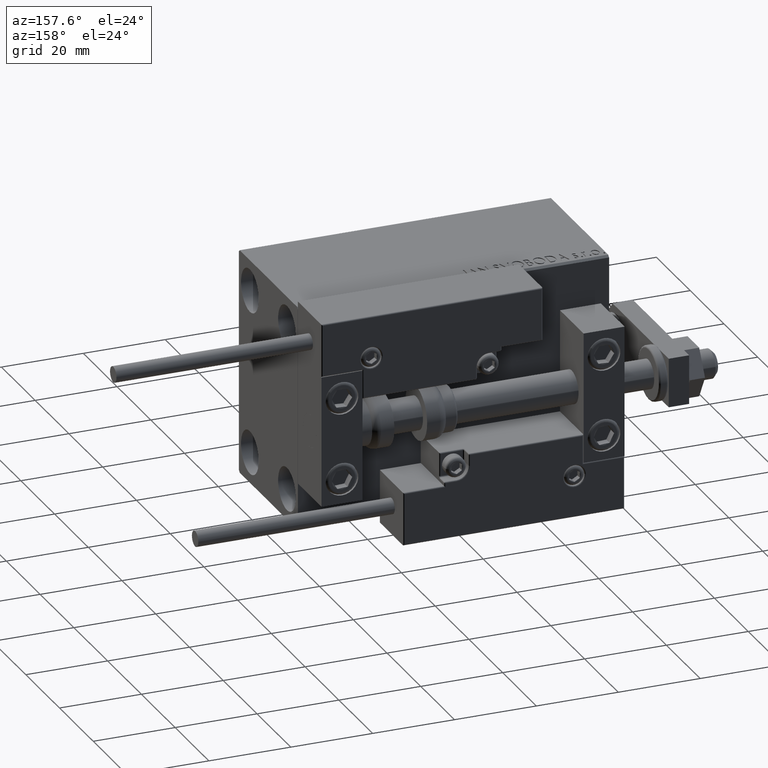
[diagram: clean part render]
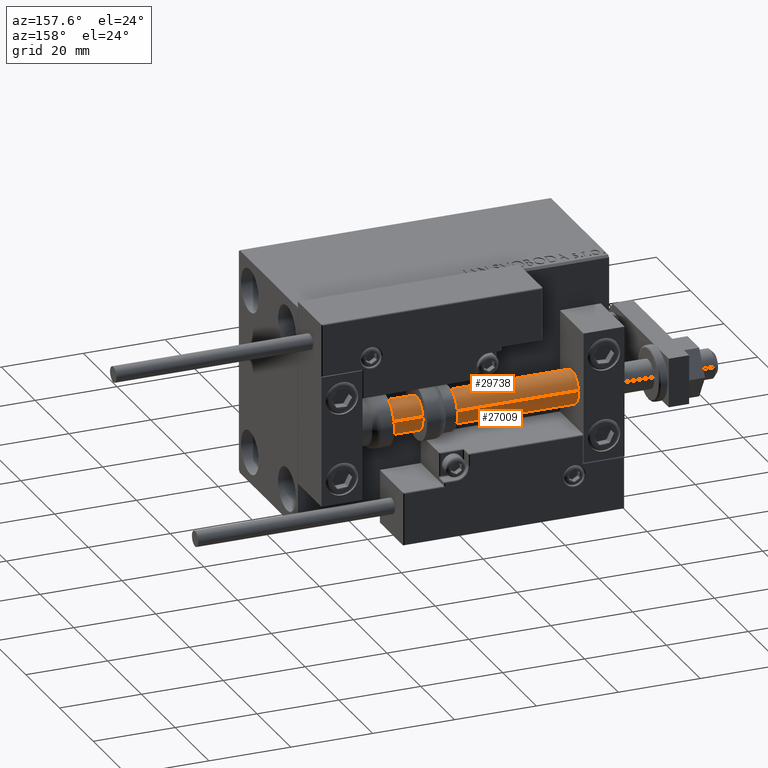
[diagram: same view with one multi-face feature highlighted, each face labeled with its STEP entity id]
A machine part, auxiliary view. The highlighted faces form ONE feature: a constant-radius fillet chain: 2 tangent blend faces with common blend radius 4 mm. The faces share edges in the B-rep.
Their STEP definitions:
[1] entity #27009 (Cylinder):
#1312 = LINE ( 'NONE', #24882, #38145 ) ;
#1612 = VECTOR ( 'NONE', #38724, 1000.000000000000000 ) ;
#2572 = VERTEX_POINT ( 'NONE', #23487 ) ;
#5825 = ORIENTED_EDGE ( 'NONE', *, *, #38409, .T. ) ;
#7432 = VERTEX_POINT ( 'NONE', #17782 ) ;
#7963 = EDGE_CURVE ( 'NONE', #7432, #30682, #26804, .T. ) ;
#8690 = DIRECTION ( 'NONE',  ( 1.000000000000000000, 0.000000000000000000, 0.000000000000000000 ) ) ;
#9431 = DIRECTION ( 'NONE',  ( -0.000000000000000000, -0.000000000000000000, 1.000000000000000000 ) ) ;
#9895 = ORIENTED_EDGE ( 'NONE', *, *, #45698, .T. ) ;
#11401 = FACE_OUTER_BOUND ( 'NONE', #21350, .T. ) ;
#12482 = CARTESIAN_POINT ( 'NONE',  ( 0.000000000000000000, 0.000000000000000000, 76.00000000000000000 ) ) ;
#12529 = CARTESIAN_POINT ( 'NONE',  ( -4.000000000000000000, 0.000000000000000000, 2.000000000000029310 ) ) ;
#12748 = CIRCLE ( 'NONE', #23284, 4.000000000000000000 ) ;
#12962 = CARTESIAN_POINT ( 'NONE',  ( 0.000000000000000000, 0.000000000000000000, 2.000000000000029310 ) ) ;
#17074 = CARTESIAN_POINT ( 'NONE',  ( 4.000000000000000000, 4.898587196589412829E-16, 2.000000000000029310 ) ) ;
#17782 = CARTESIAN_POINT ( 'NONE',  ( 4.000000000000000000, 4.898587196589412829E-16, 76.00000000000000000 ) ) ;
#18758 = DIRECTION ( 'NONE',  ( -1.000000000000000000, 0.000000000000000000, 0.000000000000000000 ) ) ;
#18869 = AXIS2_PLACEMENT_3D ( 'NONE', #43071, #30667, #18758 ) ;
#20599 = VERTEX_POINT ( 'NONE', #12529 ) ;
#21350 = EDGE_LOOP ( 'NONE', ( #36129, #24525, #9895, #5825 ) ) ;
#23284 = AXIS2_PLACEMENT_3D ( 'NONE', #12962, #9431, #28418 ) ;
#23487 = CARTESIAN_POINT ( 'NONE',  ( -4.000000000000000000, 0.000000000000000000, 76.00000000000000000 ) ) ;
#24525 = ORIENTED_EDGE ( 'NONE', *, *, #28153, .F. ) ;
#24882 = CARTESIAN_POINT ( 'NONE',  ( -4.000000000000000000, 0.000000000000000000, 76.00000000000000000 ) ) ;
#26804 = LINE ( 'NONE', #42272, #1612 ) ;
#27009 = ADVANCED_FACE ( 'NONE', ( #11401 ), #49935, .T. ) ;
#27932 = DIRECTION ( 'NONE',  ( 0.000000000000000000, 0.000000000000000000, 1.000000000000000000 ) ) ;
#28153 = EDGE_CURVE ( 'NONE', #2572, #7432, #35082, .T. ) ;
#28418 = DIRECTION ( 'NONE',  ( 1.000000000000000000, 0.000000000000000000, 0.000000000000000000 ) ) ;
#30667 = DIRECTION ( 'NONE',  ( -0.000000000000000000, -0.000000000000000000, -1.000000000000000000 ) ) ;
#30682 = VERTEX_POINT ( 'NONE', #17074 ) ;
#32490 = DIRECTION ( 'NONE',  ( -0.000000000000000000, -0.000000000000000000, -1.000000000000000000 ) ) ;
#35082 = CIRCLE ( 'NONE', #45622, 4.000000000000000000 ) ;
#36129 = ORIENTED_EDGE ( 'NONE', *, *, #7963, .F. ) ;
#38145 = VECTOR ( 'NONE', #32490, 1000.000000000000000 ) ;
#38409 = EDGE_CURVE ( 'NONE', #20599, #30682, #12748, .T. ) ;
#38724 = DIRECTION ( 'NONE',  ( -0.000000000000000000, -0.000000000000000000, -1.000000000000000000 ) ) ;
#42272 = CARTESIAN_POINT ( 'NONE',  ( 4.000000000000000000, 4.898587196589412829E-16, 76.00000000000000000 ) ) ;
#43071 = CARTESIAN_POINT ( 'NONE',  ( 0.000000000000000000, 0.000000000000000000, 76.00000000000000000 ) ) ;
#45622 = AXIS2_PLACEMENT_3D ( 'NONE', #12482, #27932, #8690 ) ;
#45698 = EDGE_CURVE ( 'NONE', #2572, #20599, #1312, .T. ) ;
#49935 = CYLINDRICAL_SURFACE ( 'NONE', #18869, 4.000000000000000000 ) ;
[2] entity #29738 (Cylinder):
#1192 = DIRECTION ( 'NONE',  ( 0.000000000000000000, 0.000000000000000000, 1.000000000000000000 ) ) ;
#1312 = LINE ( 'NONE', #24882, #38145 ) ;
#1612 = VECTOR ( 'NONE', #38724, 1000.000000000000000 ) ;
#2572 = VERTEX_POINT ( 'NONE', #23487 ) ;
#3894 = CARTESIAN_POINT ( 'NONE',  ( 0.000000000000000000, 0.000000000000000000, 76.00000000000000000 ) ) ;
#4406 = ORIENTED_EDGE ( 'NONE', *, *, #38885, .F. ) ;
#4736 = CARTESIAN_POINT ( 'NONE',  ( 0.000000000000000000, 0.000000000000000000, 76.00000000000000000 ) ) ;
#6801 = CIRCLE ( 'NONE', #19742, 4.000000000000000000 ) ;
#7432 = VERTEX_POINT ( 'NONE', #17782 ) ;
#7963 = EDGE_CURVE ( 'NONE', #7432, #30682, #26804, .T. ) ;
#11333 = ORIENTED_EDGE ( 'NONE', *, *, #45698, .F. ) ;
#12529 = CARTESIAN_POINT ( 'NONE',  ( -4.000000000000000000, 0.000000000000000000, 2.000000000000029310 ) ) ;
#16017 = AXIS2_PLACEMENT_3D ( 'NONE', #4736, #1192, #19451 ) ;
#17074 = CARTESIAN_POINT ( 'NONE',  ( 4.000000000000000000, 4.898587196589412829E-16, 2.000000000000029310 ) ) ;
#17782 = CARTESIAN_POINT ( 'NONE',  ( 4.000000000000000000, 4.898587196589412829E-16, 76.00000000000000000 ) ) ;
#18615 = CARTESIAN_POINT ( 'NONE',  ( 0.000000000000000000, 0.000000000000000000, 2.000000000000029310 ) ) ;
#18866 = DIRECTION ( 'NONE',  ( -0.000000000000000000, -0.000000000000000000, -1.000000000000000000 ) ) ;
#19451 = DIRECTION ( 'NONE',  ( 1.000000000000000000, 0.000000000000000000, 0.000000000000000000 ) ) ;
#19742 = AXIS2_PLACEMENT_3D ( 'NONE', #18615, #26699, #41694 ) ;
#20599 = VERTEX_POINT ( 'NONE', #12529 ) ;
#23414 = FACE_OUTER_BOUND ( 'NONE', #42463, .T. ) ;
#23487 = CARTESIAN_POINT ( 'NONE',  ( -4.000000000000000000, 0.000000000000000000, 76.00000000000000000 ) ) ;
#24882 = CARTESIAN_POINT ( 'NONE',  ( -4.000000000000000000, 0.000000000000000000, 76.00000000000000000 ) ) ;
#26699 = DIRECTION ( 'NONE',  ( -0.000000000000000000, -0.000000000000000000, 1.000000000000000000 ) ) ;
#26804 = LINE ( 'NONE', #42272, #1612 ) ;
#26967 = ORIENTED_EDGE ( 'NONE', *, *, #29680, .T. ) ;
#29680 = EDGE_CURVE ( 'NONE', #30682, #20599, #6801, .T. ) ;
#29738 = ADVANCED_FACE ( 'NONE', ( #23414 ), #38624, .T. ) ;
#30317 = AXIS2_PLACEMENT_3D ( 'NONE', #3894, #18866, #46492 ) ;
#30682 = VERTEX_POINT ( 'NONE', #17074 ) ;
#32490 = DIRECTION ( 'NONE',  ( -0.000000000000000000, -0.000000000000000000, -1.000000000000000000 ) ) ;
#34632 = CIRCLE ( 'NONE', #16017, 4.000000000000000000 ) ;
#38145 = VECTOR ( 'NONE', #32490, 1000.000000000000000 ) ;
#38624 = CYLINDRICAL_SURFACE ( 'NONE', #30317, 4.000000000000000000 ) ;
#38724 = DIRECTION ( 'NONE',  ( -0.000000000000000000, -0.000000000000000000, -1.000000000000000000 ) ) ;
#38885 = EDGE_CURVE ( 'NONE', #7432, #2572, #34632, .T. ) ;
#41694 = DIRECTION ( 'NONE',  ( 1.000000000000000000, 0.000000000000000000, 0.000000000000000000 ) ) ;
#42272 = CARTESIAN_POINT ( 'NONE',  ( 4.000000000000000000, 4.898587196589412829E-16, 76.00000000000000000 ) ) ;
#42463 = EDGE_LOOP ( 'NONE', ( #4406, #46163, #26967, #11333 ) ) ;
#45698 = EDGE_CURVE ( 'NONE', #2572, #20599, #1312, .T. ) ;
#46163 = ORIENTED_EDGE ( 'NONE', *, *, #7963, .T. ) ;
#46492 = DIRECTION ( 'NONE',  ( -1.000000000000000000, 0.000000000000000000, 0.000000000000000000 ) ) ;